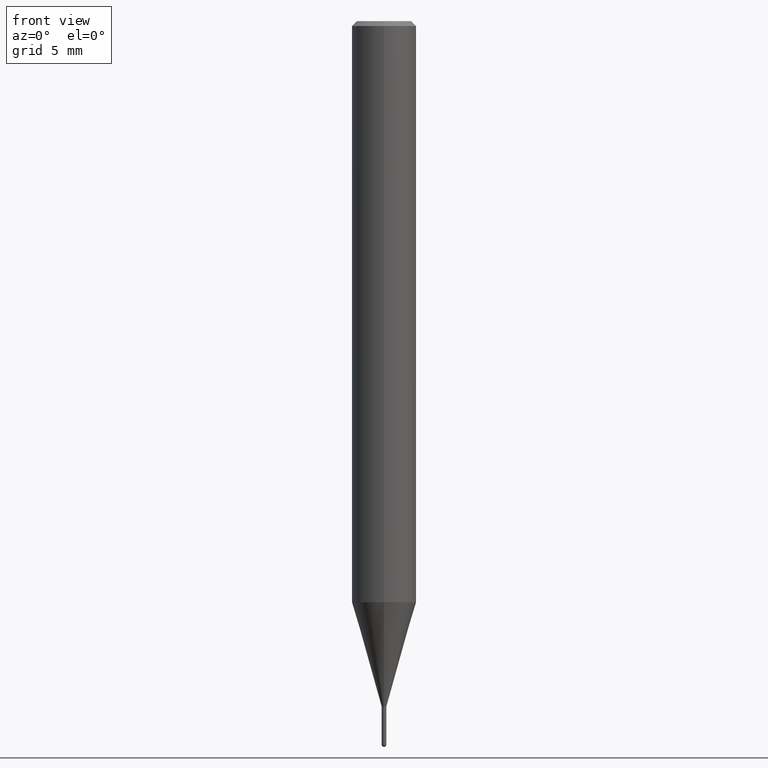
[diagram: clean part render]
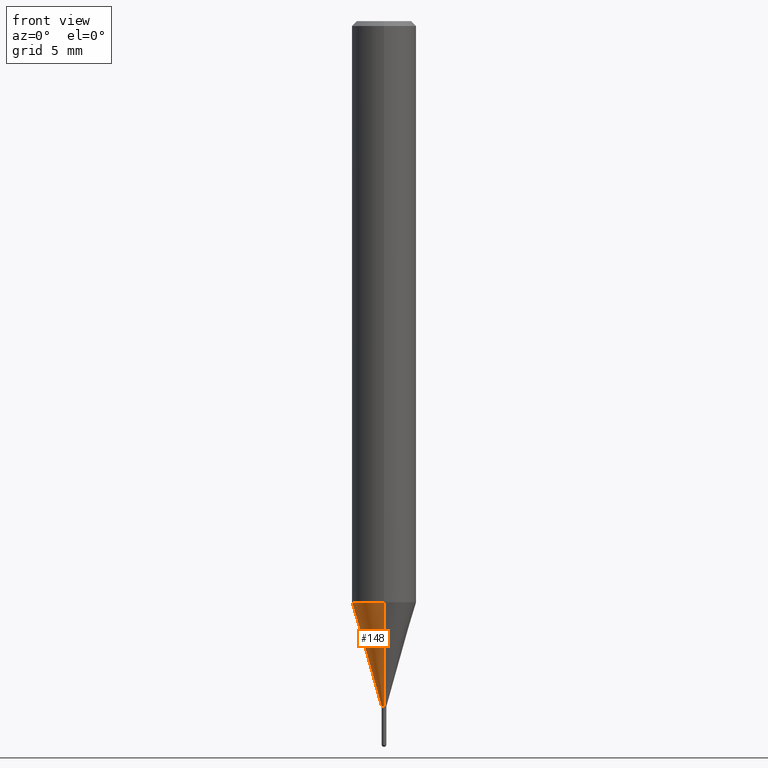
[diagram: same view with one face highlighted and labeled with its STEP entity id]
A machine part, front view. The second image highlights one B-rep face of the part: STEP entity #148.
In plain terms, the highlighted conical surface has half-angle 16 deg.
Its self-contained STEP definition (entity closure, byte-faithful):
#102=EDGE_CURVE('',#154,#136,#243,.T.);
#104=VERTEX_POINT('',#245);
#118=EDGE_CURVE('',#104,#158,#261,.T.);
#136=VERTEX_POINT('',#283);
#148=ADVANCED_FACE('',(#296),#297,.T.);
#154=VERTEX_POINT('',#303);
#158=VERTEX_POINT('',#307);
#162=EDGE_CURVE('',#136,#104,#311,.T.);
#174=EDGE_CURVE('',#154,#158,#325,.T.);
#243=LINE('',#399,#400);
#245=CARTESIAN_POINT('',(0.0,1.99995,-36.031));
#261=LINE('',#422,#423);
#283=CARTESIAN_POINT('',(2.44915147732706E-016,-1.99995,-36.031));
#296=FACE_OUTER_BOUND('',#464,.T.);
#297=CONICAL_SURFACE('',#465,1.07245,0.279258979430112);
#303=CARTESIAN_POINT('',(1.77506690986554E-017,-0.14495,-42.5));
#307=CARTESIAN_POINT('',(0.0,0.14495,-42.5));
#311=CIRCLE('',#486,1.99995);
#325=CIRCLE('',#503,0.14495);
#399=CARTESIAN_POINT('',(1.31332908415681E-016,-1.07245,-39.2655));
#400=VECTOR('',#569,1.0);
#422=CARTESIAN_POINT('',(-1.31332908415681E-016,1.07245,-39.2655));
#423=VECTOR('',#588,1.0);
#464=EDGE_LOOP('',(#641,#642,#643,#644));
#465=AXIS2_PLACEMENT_3D('',#645,#646,#647);
#486=AXIS2_PLACEMENT_3D('',#656,#657,#658);
#503=AXIS2_PLACEMENT_3D('',#678,#679,#680);
#569=DIRECTION('',(3.37554672384358E-017,-0.275643410905672,0.961259959648943));
#588=DIRECTION('',(3.37554672384358E-017,-0.275643410905672,-0.961259959648943));
#641=ORIENTED_EDGE('',*,*,#118,.T.);
#642=ORIENTED_EDGE('',*,*,#174,.F.);
#643=ORIENTED_EDGE('',*,*,#102,.T.);
#644=ORIENTED_EDGE('',*,*,#162,.T.);
#645=CARTESIAN_POINT('',(0.0,0.0,-39.2655));
#646=DIRECTION('',(-0.0,-0.0,1.0));
#647=DIRECTION('',(0.0,1.0,0.0));
#656=CARTESIAN_POINT('',(0.0,0.0,-36.031));
#657=DIRECTION('',(0.0,0.0,-1.0));
#658=DIRECTION('',(0.0,1.0,0.0));
#678=CARTESIAN_POINT('',(0.0,0.0,-42.5));
#679=DIRECTION('',(0.0,0.0,-1.0));
#680=DIRECTION('',(0.0,1.0,0.0));